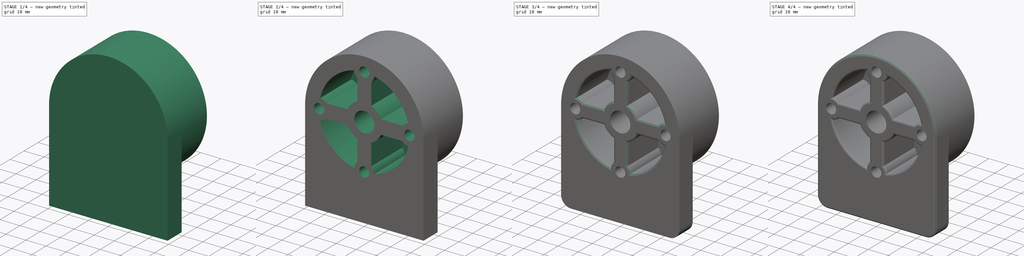
[diagram: build sequence overview — one tinted view per stage of 4, left to right]
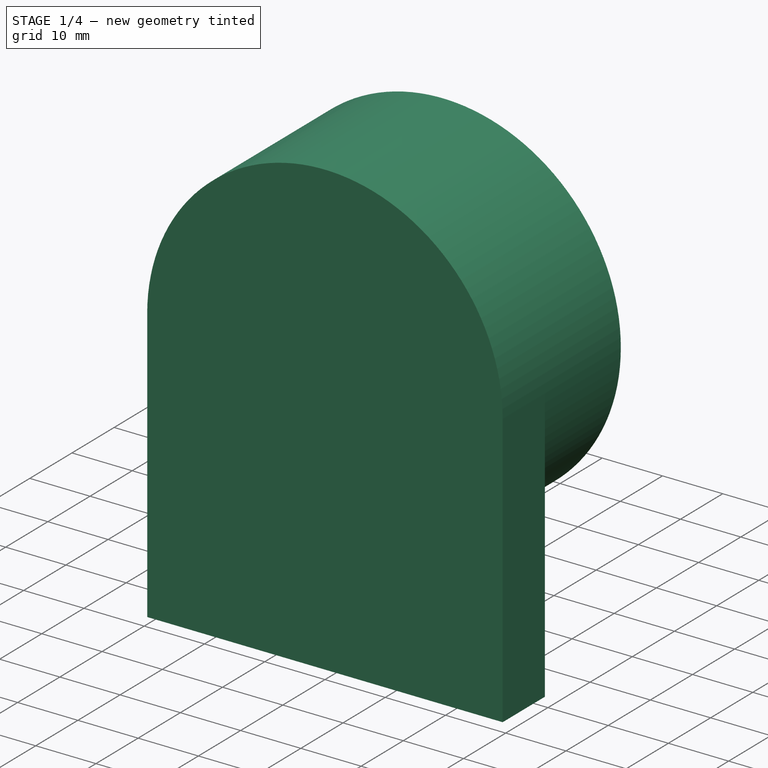
[diagram: stage 1 of 4 — iso view after this stage's code; geometry added in this stage tinted green]
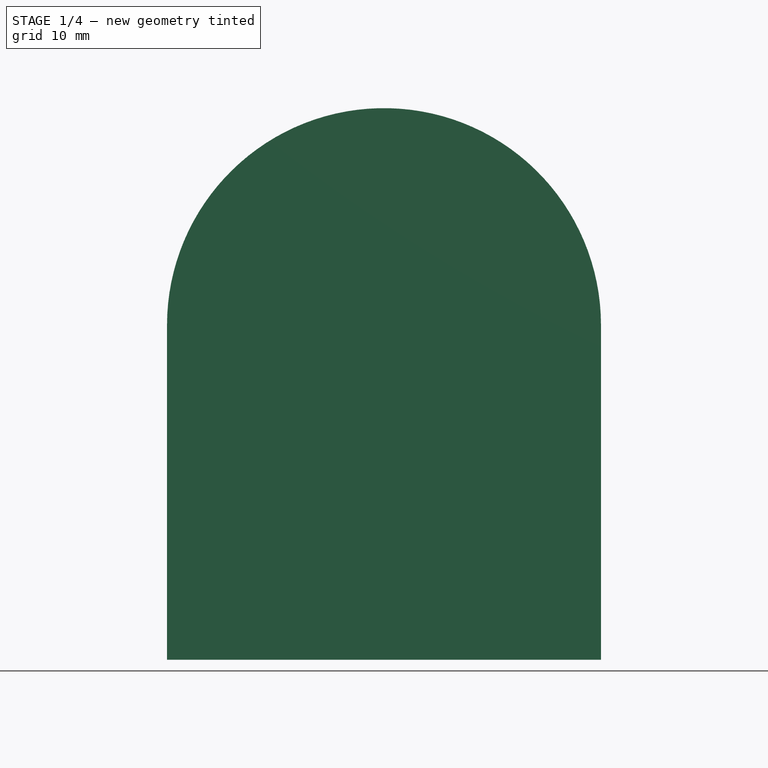
[diagram: stage 1 of 4 — front view after this stage's code; geometry added in this stage tinted green]
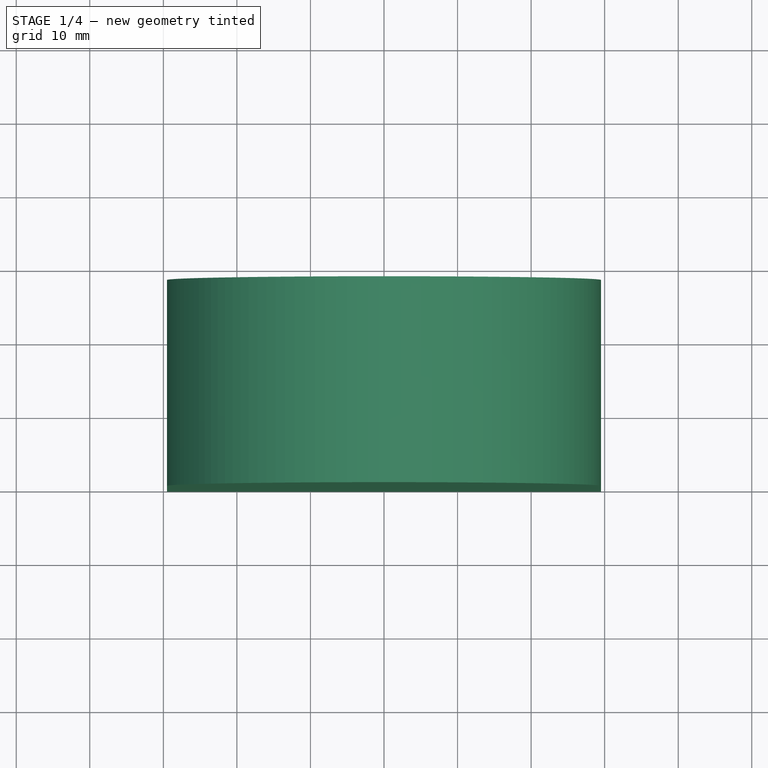
[diagram: stage 1 of 4 — top view after this stage's code; geometry added in this stage tinted green]
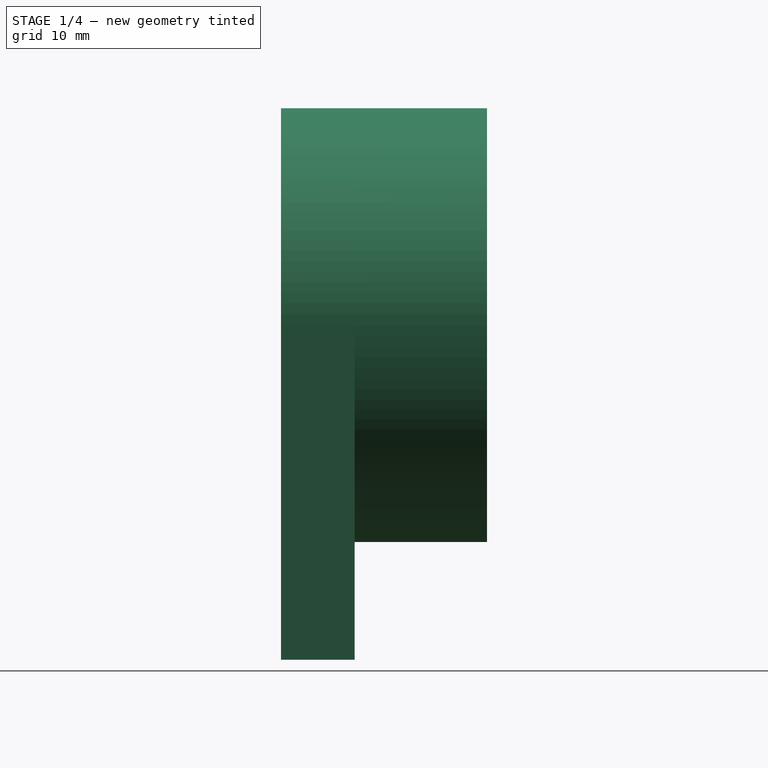
[diagram: stage 1 of 4 — right view after this stage's code; geometry added in this stage tinted green]
FCSTD DOCUMENT  (FreeCAD 0.18R4 (GitTag))
Label: Zega-Lower-Mount
License: All rights reserved
LicenseURL: http://en.wikipedia.org/wiki/All_rights_reserved
objects: Sketcher::SketchObject×5, PartDesign::Fillet×5, PartDesign::Pad×2, PartDesign::Hole×2, PartDesign::Pocket×1, PartDesign::Body×1
note: 21 computed .brp shape members not serialized (recipe doc carries the construction recipe); baked Part::Feature solids carry a one-line shape summary decoded from their .brp

FEATURE [Sketcher::SketchObject] Sketch
  MapMode = 5
  Placement = pos=(0,0,0) rot=(1,0,0;1.5708rad)
  Support = -> [XZ_Plane]
  sketch-geometry (5):
    g0: LineSegment StartX=-29.5 StartY=3.6e-15 StartZ=0 EndX=-29.5 EndY=-45.5 EndZ=0
    g1: LineSegment StartX=-29.5 StartY=-45.5 StartZ=0 EndX=29.5 EndY=-45.5 EndZ=0
    g2: LineSegment StartX=29.5 StartY=-45.5 StartZ=0 EndX=29.5 EndY=0 EndZ=0
    g3: GeomPoint X=0 Y=29.5 Z=0
    g4: ArcOfCircle CenterX=0 CenterY=0 CenterZ=0 NormalX=0 NormalY=0 NormalZ=1 AngleXU=0 Radius=29.5 StartAngle=0 EndAngle=3.14159
  constraints (14):
    c: Coincident(g1,g0)
    c: Horizontal(g1)
    c: Coincident(g2,g1)
    c: PointOnObject(g2,g-1)
    c: PointOnObject(g0,g-1)
    c: Vertical(g0)
    c: PointOnObject(g3,g-2)
    c: DistanceY(g1,g3) = 75
    c: Coincident(g4,g-1)
    c: Coincident(g4,g0)
    c: Coincident(g4,g2)
    c: Diameter(g4) = 59
    c: PointOnObject(g3,g4)
    c: Vertical(g2)
FEATURE [PartDesign::Pad] Pad  label="Clamp pad"
  Length = 10
  Length2 = 100
  Placement = pos=(0,0,0) rot=(1,0,0;1.5708rad)
  Profile = -> Sketch
  Type = 0
FEATURE [Sketcher::SketchObject] Sketch001
  ExternalGeometry = -> [Pad]
  MapMode = 5
  Placement = pos=(0,0,0) rot=(-1,0,0;1.5708rad)
  Support = -> [Pad]
  sketch-geometry (1):
    g0: Circle CenterX=0 CenterY=0 CenterZ=0 NormalX=0 NormalY=0 NormalZ=1 AngleXU=0 Radius=29.5
  constraints (2):
    c: Coincident(g0,g-1)
    c: PointOnObject(g-3,g0)
FEATURE [PartDesign::Pad] Pad001  label="Rack round pad"
  BaseFeature = -> Pad
  Length = 18
  Length2 = 100
  Placement = pos=(0,0,0) rot=(1,0,0;1.5708rad)
  Profile = -> Sketch001
  Type = 0
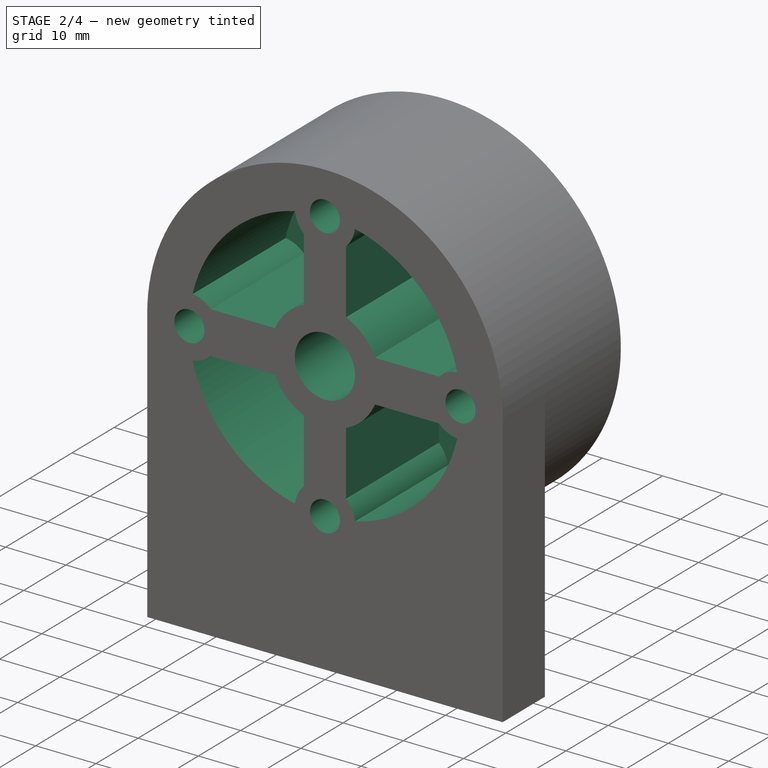
[diagram: stage 2 of 4 — iso view after this stage's code; geometry added in this stage tinted green]
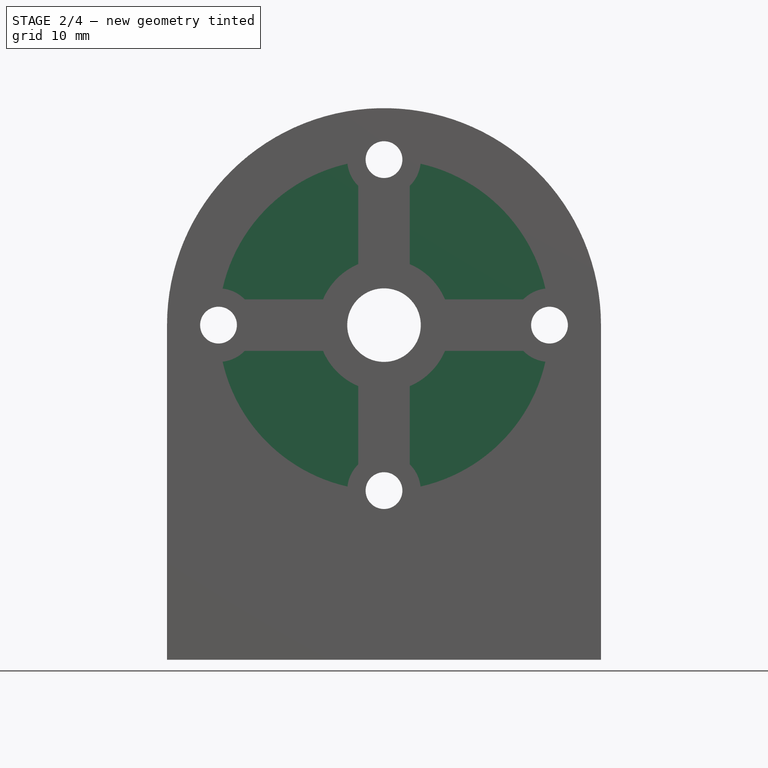
[diagram: stage 2 of 4 — front view after this stage's code; geometry added in this stage tinted green]
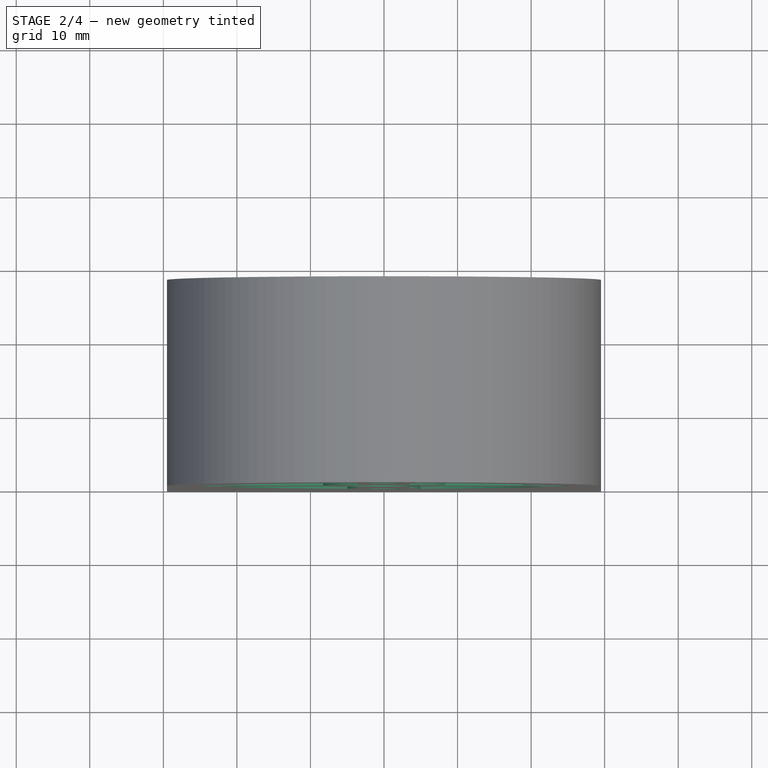
[diagram: stage 2 of 4 — top view after this stage's code; geometry added in this stage tinted green]
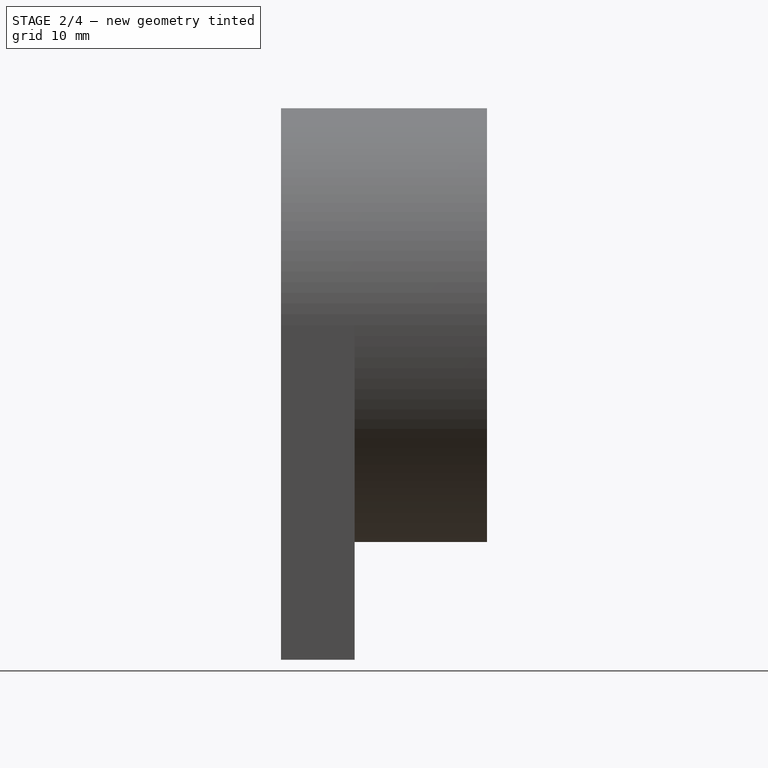
[diagram: stage 2 of 4 — right view after this stage's code; geometry added in this stage tinted green]
FEATURE [Sketcher::SketchObject] Sketch002
  MapMode = 5
  Placement = pos=(0,18,-1.61e-14) rot=(-1,0,0;1.5708rad)
  Support = -> [Pad001]
  sketch-geometry (4):
    g0: Circle CenterX=0 CenterY=22.5 CenterZ=0 NormalX=0 NormalY=0 NormalZ=1 AngleXU=0 Radius=2.5
    g1: Circle CenterX=-22.5 CenterY=0 CenterZ=0 NormalX=0 NormalY=0 NormalZ=1 AngleXU=0 Radius=2.5
    g2: Circle CenterX=0 CenterY=-22.5 CenterZ=0 NormalX=0 NormalY=0 NormalZ=1 AngleXU=0 Radius=2.5
    g3: Circle CenterX=22.5 CenterY=0 CenterZ=0 NormalX=0 NormalY=0 NormalZ=1 AngleXU=0 Radius=2.5
  constraints (10):
    c: PointOnObject(g0,g-2)
    c: PointOnObject(g1,g-1)
    c: Equal(g3,g0)
    c: Equal(g0,g1)
    c: Equal(g1,g2)
    c: Diameter(g3) = 5
    c: DistanceY(g2,g0) = 45
    c: DistanceX(g1,g3) = 45
    c: Symmetric(g1,g3,g-1)
    c: Symmetric(g2,g0,g-1)
FEATURE [PartDesign::Hole] Hole  label="Pannier mounting holes"
  BaseFeature = -> Pad001
  Depth = 25
  DepthType = 1
  Diameter = 5
  DrillPoint = 1
  DrillPointAngle = 118
  HoleCutCountersinkAngle = 90
  HoleCutDepth = 0
  HoleCutDiameter = 0
  HoleCutType = 0
  ModelActualThread = false
  Placement = pos=(0,0,0) rot=(1,0,0;1.5708rad)
  Profile = -> Sketch002
  Tapered = false
  TaperedAngle = 90
  ThreadAngle = 0
  ThreadClass = 0
  ThreadCutOffInner = 0
  ThreadCutOffOuter = 0
  ThreadDirection = 0
  ThreadFit = 0
  ThreadPitch = 0
  ThreadSize = 0
  ThreadType = 0
  Threaded = false
FEATURE [Sketcher::SketchObject] Sketch003
  MapMode = 5
  Placement = pos=(0,18,-1.61e-14) rot=(-1,0,0;1.5708rad)
  Support = -> [Hole]
  sketch-geometry (1):
    g0: Circle CenterX=0 CenterY=0 CenterZ=0 NormalX=0 NormalY=0 NormalZ=1 AngleXU=0 Radius=5
  constraints (2):
    c: Coincident(g0,g-1)
    c: Diameter(g0) = 10
FEATURE [PartDesign::Hole] Hole001  label="Bolt hole"
  BaseFeature = -> Hole
  Depth = 25
  DepthType = 1
  Diameter = 10
  DrillPoint = 1
  DrillPointAngle = 118
  HoleCutCountersinkAngle = 90
  HoleCutDepth = 0
  HoleCutDiameter = 0
  HoleCutType = 0
  ModelActualThread = false
  Placement = pos=(0,0,0) rot=(1,0,0;1.5708rad)
  Profile = -> Sketch003
  Tapered = false
  TaperedAngle = 90
  ThreadAngle = 0
  ThreadClass = 0
  ThreadCutOffInner = 0
  ThreadCutOffOuter = 0
  ThreadDirection = 0
  ThreadFit = 0
  ThreadPitch = 0
  ThreadSize = 0
  ThreadType = 0
  Threaded = false
FEATURE [Sketcher::SketchObject] Sketch004
  ExternalGeometry = -> [Hole001]
  MapMode = 5
  Placement = pos=(0,-10,4.4e-15) rot=(1,0,0;1.5708rad)
  Support = -> [Hole001]
  sketch-geometry (30):
    g0: ArcOfCircle CenterX=0 CenterY=0 CenterZ=0 NormalX=0 NormalY=0 NormalZ=1 AngleXU=0 Radius=22.5 StartAngle=3.36427 EndAngle=4.48971
    g1: ArcOfCircle CenterX=0 CenterY=22.5 CenterZ=0 NormalX=0 NormalY=0 NormalZ=1 AngleXU=0 Radius=5 StartAngle=5.48779 EndAngle=6.17184
    g2: LineSegment StartX=3.5 StartY=18.9293 StartZ=0 EndX=3.5 EndY=8.29156 EndZ=0
    g3: ArcOfCircle CenterX=-22.5 CenterY=-6e-16 CenterZ=0 NormalX=0 NormalY=0 NormalZ=1 AngleXU=0 Radius=5 StartAngle=4.82373 EndAngle=5.50779
    g4: ArcOfCircle CenterX=0 CenterY=0 CenterZ=0 NormalX=0 NormalY=0 NormalZ=1 AngleXU=0 Radius=9 StartAngle=1.97022 EndAngle=2.74217
    g5: ArcOfCircle CenterX=0 CenterY=-22.5 CenterZ=0 NormalX=0 NormalY=0 NormalZ=1 AngleXU=0 Radius=5 StartAngle=0.111341 EndAngle=0.795399
    g6: ArcOfCircle CenterX=22.5 CenterY=-6e-16 CenterZ=0 NormalX=0 NormalY=0 NormalZ=1 AngleXU=0 Radius=5 StartAngle=3.91699 EndAngle=4.60105
    g7: LineSegment StartX=8.29156 StartY=3.5 StartZ=0 EndX=18.9293 EndY=3.5 EndZ=0
    g8: LineSegment StartX=8.29156 StartY=-3.5 StartZ=0 EndX=18.9293 EndY=-3.5 EndZ=0
    g9: LineSegment StartX=3.5 StartY=-8.29156 StartZ=0 EndX=3.5 EndY=-18.9293 EndZ=0
    g10: LineSegment StartX=-3.5 StartY=-8.29156 StartZ=0 EndX=-3.5 EndY=-18.9293 EndZ=0
    g11: LineSegment StartX=-18.9293 StartY=-3.5 StartZ=0 EndX=-8.29156 EndY=-3.5 EndZ=0
    g12: LineSegment StartX=-18.9293 StartY=3.5 StartZ=0 EndX=-8.29156 EndY=3.5 EndZ=0
    g13: LineSegment StartX=-3.5 StartY=18.9293 StartZ=0 EndX=-3.5 EndY=8.29156 EndZ=0
    g14: ArcOfCircle CenterX=0 CenterY=0 CenterZ=0 NormalX=0 NormalY=0 NormalZ=1 AngleXU=0 Radius=9 StartAngle=0.399425 EndAngle=1.17137
    g15: ArcOfCircle CenterX=0 CenterY=0 CenterZ=0 NormalX=0 NormalY=0 NormalZ=1 AngleXU=0 Radius=9 StartAngle=3.54102 EndAngle=4.31296
    g16: ArcOfCircle CenterX=0 CenterY=0 CenterZ=0 NormalX=0 NormalY=0 NormalZ=1 AngleXU=0 Radius=9 StartAngle=5.11181 EndAngle=5.88376
    g17: GeomPoint X=-21.9444 Y=4.96904 Z=0
    g18: GeomPoint X=-21.9444 Y=-4.96904 Z=0
    g19: GeomPoint X=-4.96904 Y=-21.9444 Z=0
    g20: GeomPoint X=4.96904 Y=-21.9444 Z=0
    g21: GeomPoint X=21.9444 Y=-4.96904 Z=0
    g22: GeomPoint X=21.9444 Y=4.96904 Z=0
    g23: ArcOfCircle CenterX=-22.5 CenterY=-6e-16 CenterZ=0 NormalX=0 NormalY=0 NormalZ=1 AngleXU=0 Radius=5 StartAngle=0.775397 EndAngle=1.45946
    g24: ArcOfCircle CenterX=0 CenterY=0 CenterZ=0 NormalX=0 NormalY=0 NormalZ=1 AngleXU=0 Radius=22.5 StartAngle=4.93507 EndAngle=6.0605
    g25: ArcOfCircle CenterX=0 CenterY=-22.5 CenterZ=0 NormalX=0 NormalY=0 NormalZ=1 AngleXU=0 Radius=5 StartAngle=2.34619 EndAngle=3.03025
    g26: ArcOfCircle CenterX=22.5 CenterY=-6e-16 CenterZ=0 NormalX=0 NormalY=0 NormalZ=1 AngleXU=0 Radius=5 StartAngle=1.68214 EndAngle=2.3662
    g27: ArcOfCircle CenterX=0 CenterY=0 CenterZ=0 NormalX=0 NormalY=0 NormalZ=1 AngleXU=0 Radius=22.5 StartAngle=0.222682 EndAngle=1.34811
    g28: ArcOfCircle CenterX=0 CenterY=22.5 CenterZ=0 NormalX=0 NormalY=0 NormalZ=1 AngleXU=0 Radius=5 StartAngle=3.25293 EndAngle=3.93699
    g29: ArcOfCircle CenterX=0 CenterY=0 CenterZ=0 NormalX=0 NormalY=0 NormalZ=1 AngleXU=0 Radius=22.5 StartAngle=1.79348 EndAngle=2.91891
  constraints (82):
    c: Coincident(g0,g-1)
    c: PointOnObject(g-3,g0)
    c: Coincident(g1,g-3)
    c: Diameter(g1) = 10
    c: Vertical(g2)
    c: Coincident(g3,g-4)
    c: Coincident(g4,g0)
    c: Coincident(g5,g-5)
    c: Coincident(g6,g-6)
    c: Equal(g1,g6)
    c: Equal(g6,g5)
    c: Equal(g5,g3)
    c: Diameter(g4) = 18
    c: Horizontal(g7)
    c: Horizontal(g8)
    c: PointOnObject(g9,g4)
    c: Vertical(g9)
    c: Vertical(g10)
    c: Horizontal(g11)
    c: Horizontal(g12)
    c: Vertical(g13)
    c: Coincident(g4,g13)
    c: Coincident(g14,g2)
    c: Coincident(g16,g8)
    c: Coincident(g14,g7)
    c: Coincident(g4,g14)
    c: Equal(g4,g15)
    c: Coincident(g4,g12)
    c: Coincident(g15,g11)
    c: Coincident(g4,g15)
    c: PointOnObject(g15,g10)
    c: PointOnObject(g16,g9)
    c: Coincident(g15,g16)
    c: PointOnObject(g17,g0)
    c: PointOnObject(g17,g3)
    c: PointOnObject(g18,g0)
    c: PointOnObject(g19,g0)
    c: PointOnObject(g21,g0)
    c: PointOnObject(g22,g0)
    c: PointOnObject(g22,g6)
    c: PointOnObject(g21,g6)
    c: PointOnObject(g20,g5)
    c: PointOnObject(g20,g0)
    c: PointOnObject(g19,g5)
    c: PointOnObject(g18,g3)
    c: Coincident(g3,g0)
    c: Coincident(g23,g29)
    c: Coincident(g3,g11)
    c: Coincident(g23,g12)
    c: Coincident(g3,g23)
    c: Equal(g0,g24)
    c: Coincident(g0,g24)
    c: Coincident(g5,g24)
    c: Coincident(g25,g0)
    c: Equal(g5,g25)
    c: Coincident(g5,g9)
    c: Coincident(g25,g10)
    c: Coincident(g5,g25)
    c: Coincident(g6,g8)
    c: Coincident(g26,g7)
    c: Equal(g6,g26)
    c: Coincident(g6,g26)
    c: Equal(g24,g27)
    c: Coincident(g24,g6)
    c: Coincident(g27,g26)
    c: Coincident(g24,g27)
    c: Coincident(g1,g2)
    c: Coincident(g28,g13)
    c: Equal(g1,g28)
    c: Coincident(g1,g28)
    c: Equal(g27,g29)
    c: Coincident(g27,g1)
    c: Coincident(g29,g28)
    c: Coincident(g27,g29)
    c: Symmetric(g3,g12,g-1)
    c: Symmetric(g10,g9,g-2)
    c: Symmetric(g8,g7,g-1)
    c: Symmetric(g4,g2,g-2)
    c: DistanceX(g13,g1) = 7
    c: DistanceY(g6,g7) = 7
    c: DistanceX(g10,g5) = 7
    c: DistanceY(g11,g4) = 7
FEATURE [PartDesign::Pocket] Pocket
  BaseFeature = -> Hole001
  Length = 22
  Length2 = 100
  Placement = pos=(0,0,0) rot=(1,0,0;1.5708rad)
  Profile = -> Sketch004
  Type = 0
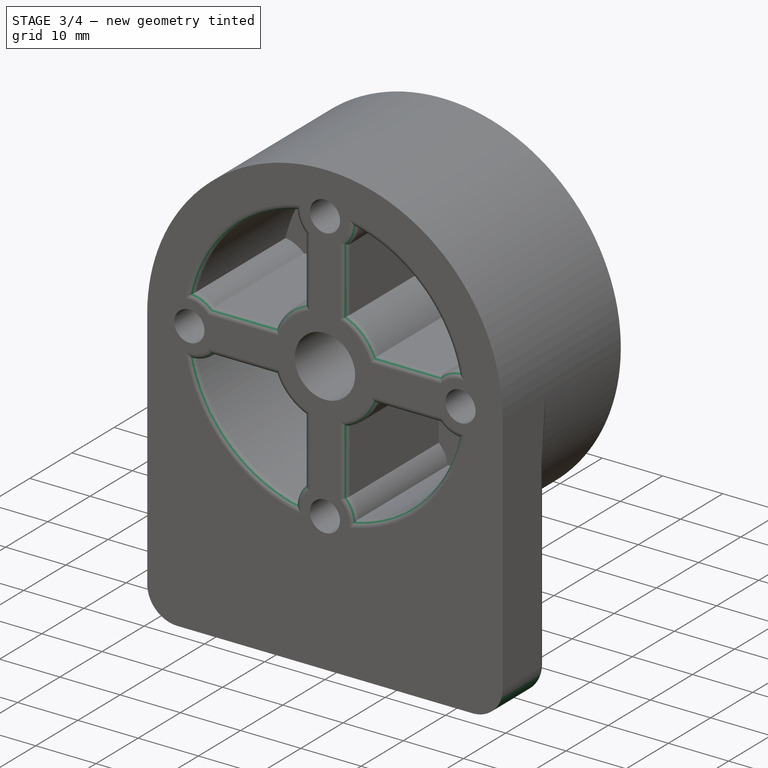
[diagram: stage 3 of 4 — iso view after this stage's code; geometry added in this stage tinted green]
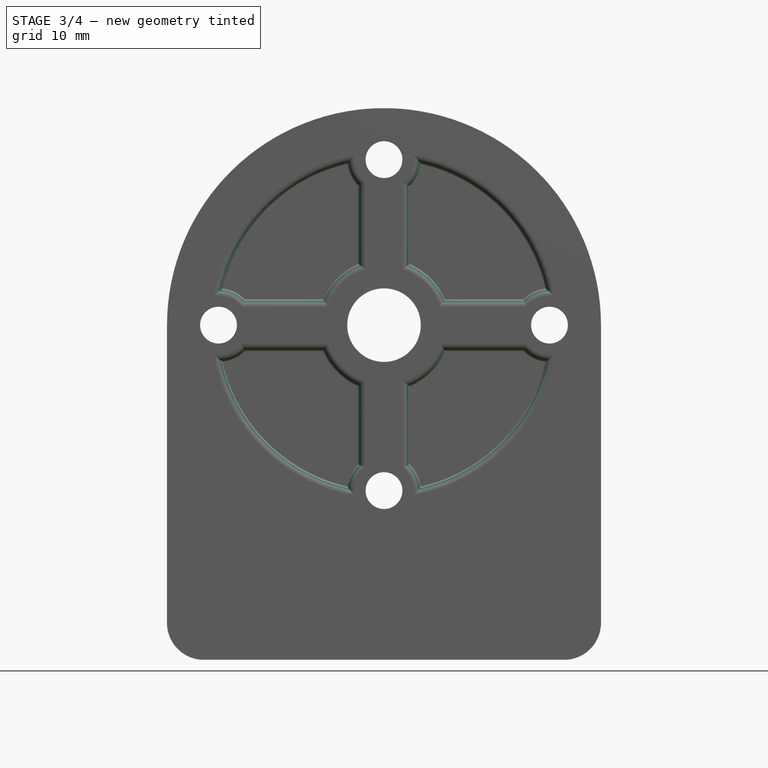
[diagram: stage 3 of 4 — front view after this stage's code; geometry added in this stage tinted green]
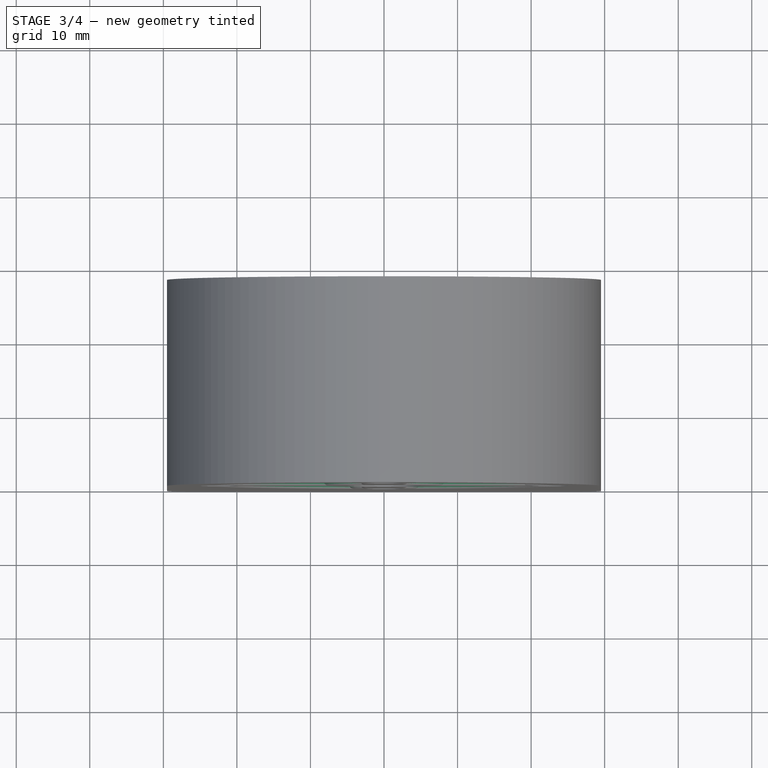
[diagram: stage 3 of 4 — top view after this stage's code; geometry added in this stage tinted green]
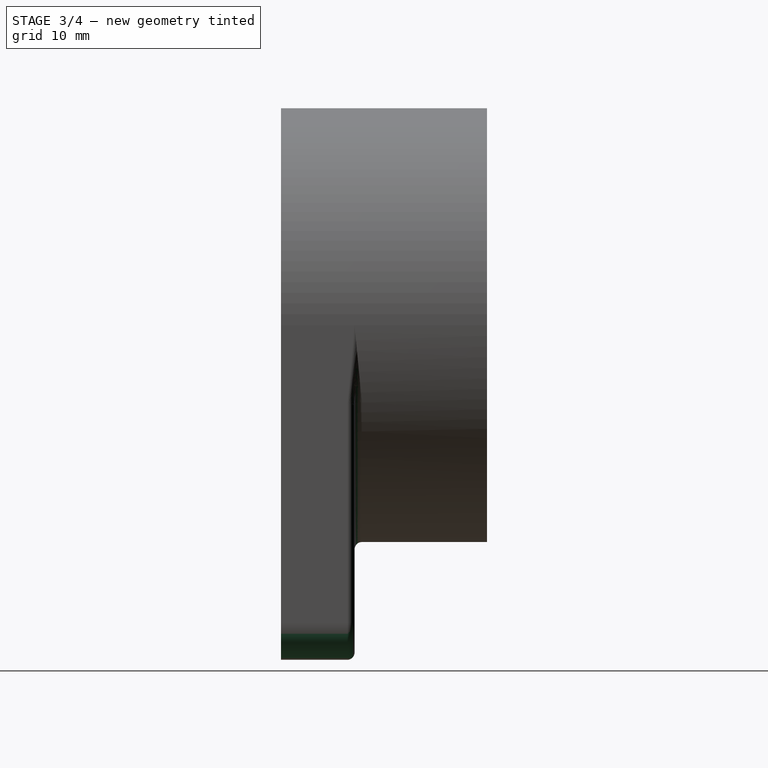
[diagram: stage 3 of 4 — right view after this stage's code; geometry added in this stage tinted green]
FEATURE [PartDesign::Fillet] Fillet
  Base = -> Pocket [Edge2,Edge8]
  BaseFeature = -> Pocket
  Placement = pos=(0,0,0) rot=(1,0,0;1.5708rad)
  Radius = 5
FEATURE [PartDesign::Fillet] Fillet001
  Base = -> Fillet [Edge39,Edge34,Edge38,Edge37,Edge36,Edge35,Edge45,Edge44,Edge43,Edge42,Edge46,Edge41,Edge28,Edge32,Edge33,Edge31,Edge29,Edge30,Edge22,Edge23,Edge21,Edge20,Edge24,Edge19]
  BaseFeature = -> Fillet
  Placement = pos=(0,0,0) rot=(1,0,0;1.5708rad)
  Radius = 1
FEATURE [PartDesign::Fillet] Fillet003
  Base = -> Fillet001 [Face43]
  BaseFeature = -> Fillet001
  Placement = pos=(0,0,0) rot=(1,0,0;1.5708rad)
  Radius = 1
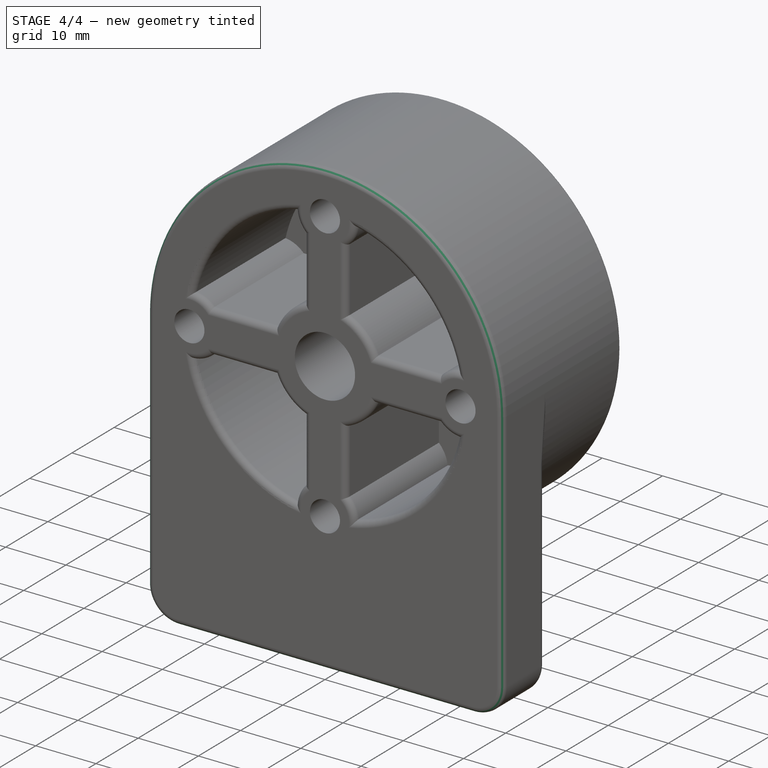
[diagram: stage 4 of 4 — iso view after this stage's code; geometry added in this stage tinted green]
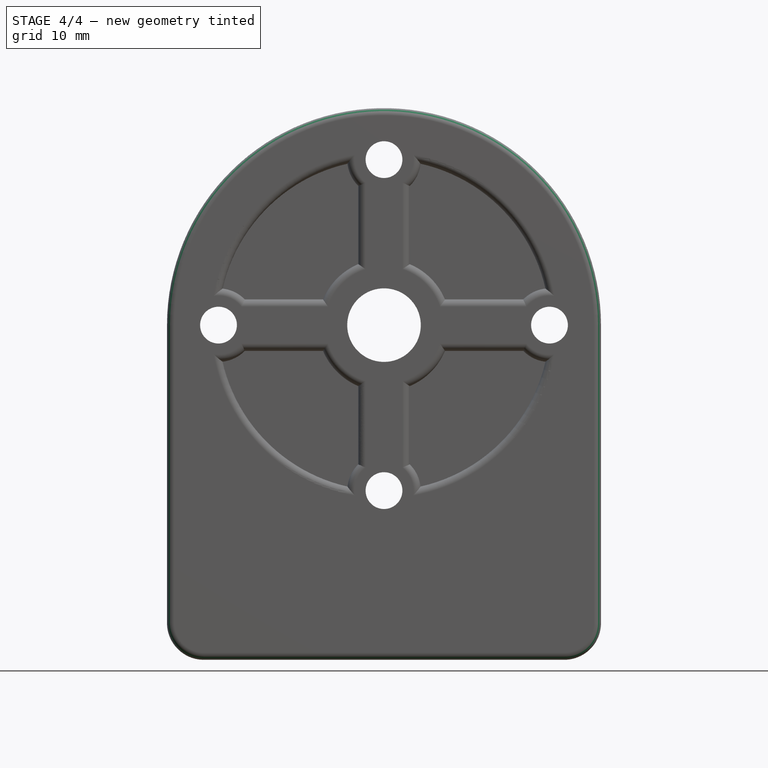
[diagram: stage 4 of 4 — front view after this stage's code; geometry added in this stage tinted green]
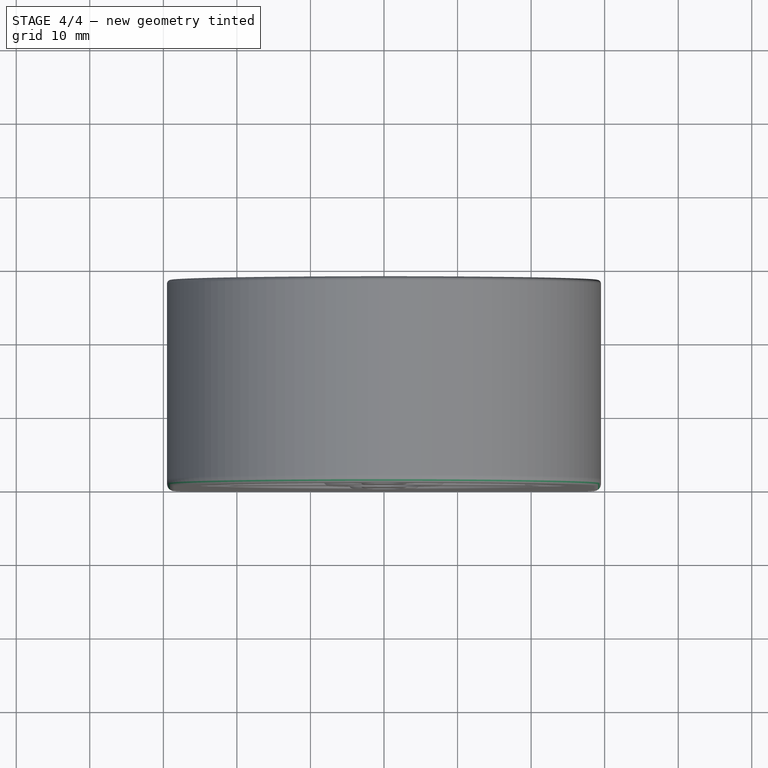
[diagram: stage 4 of 4 — top view after this stage's code; geometry added in this stage tinted green]
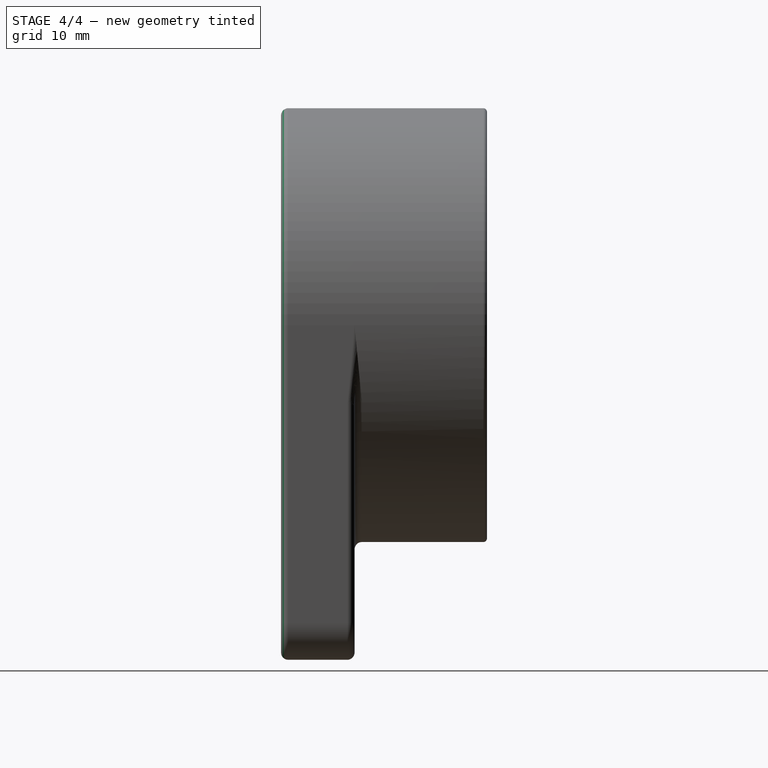
[diagram: stage 4 of 4 — right view after this stage's code; geometry added in this stage tinted green]
FEATURE [PartDesign::Fillet] Fillet004
  Base = -> Fillet003 [Edge123]
  BaseFeature = -> Fillet003
  Placement = pos=(0,0,0) rot=(1,0,0;1.5708rad)
  Radius = 0.5
FEATURE [PartDesign::Fillet] Fillet005
  Base = -> Fillet004 [Edge29,Edge36,Edge37,Edge26,Edge38,Edge11]
  BaseFeature = -> Fillet004
  Placement = pos=(0,0,0) rot=(1,0,0;1.5708rad)
  Radius = 1
FEATURE [PartDesign::Body] Body
  Group = -> [Sketch,Pad,Sketch001,Pad001,Sketch002,Hole,Sketch003,Hole001,Sketch004,Pocket,Fillet,Fillet001,Fillet003,Fillet004,Fillet005]
  Origin = -> Origin
  Tip = -> Fillet005
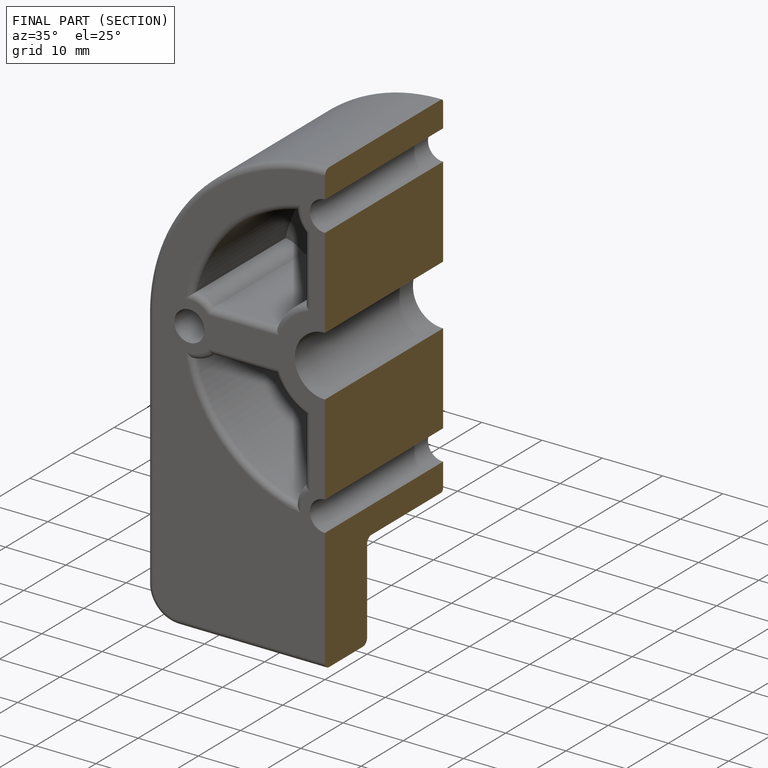
[diagram: finished part — half-section view (interior)]
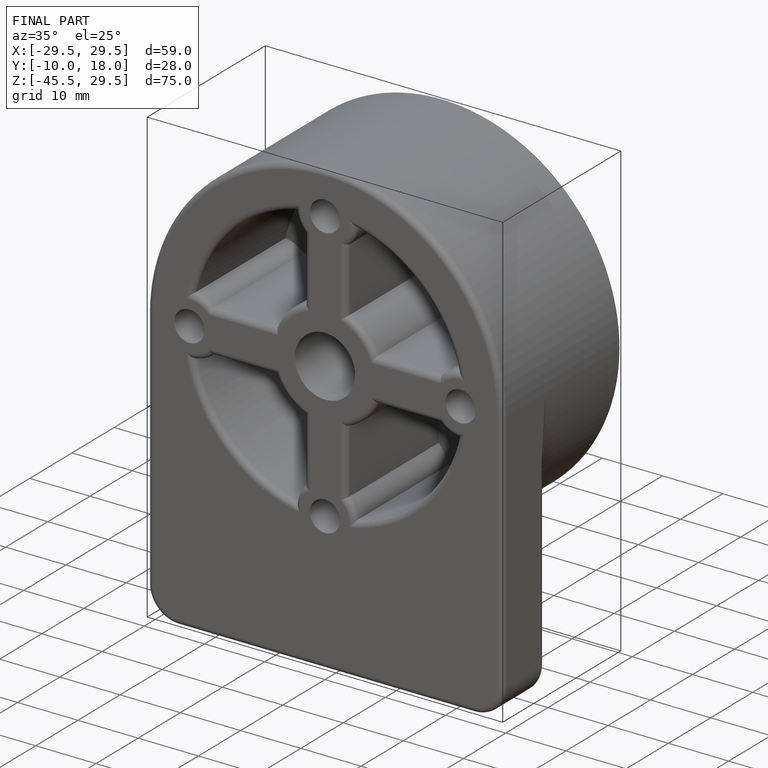
[diagram: finished part — iso view with bounding-box wireframe]
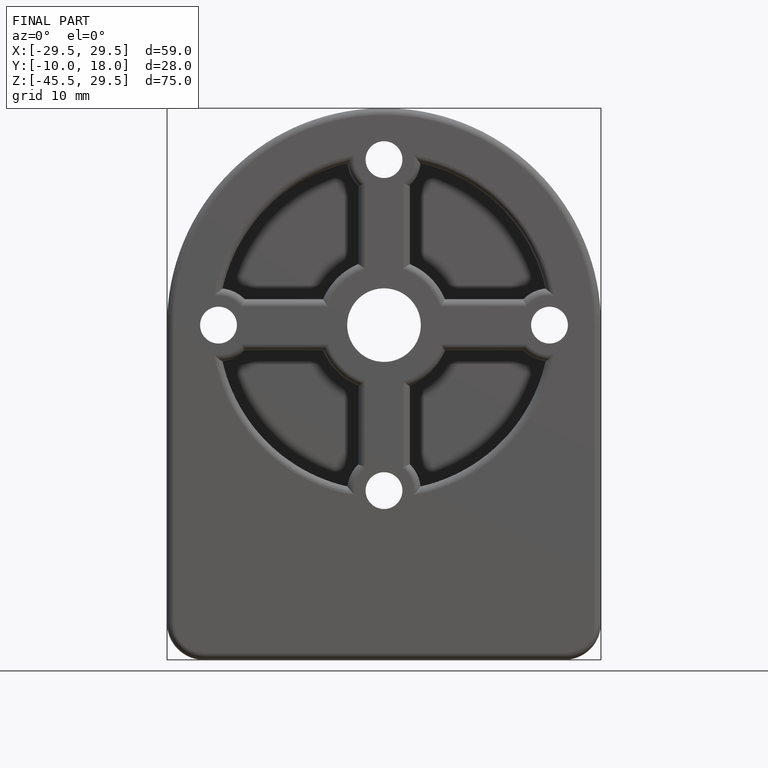
[diagram: finished part — front view with bounding-box wireframe]
